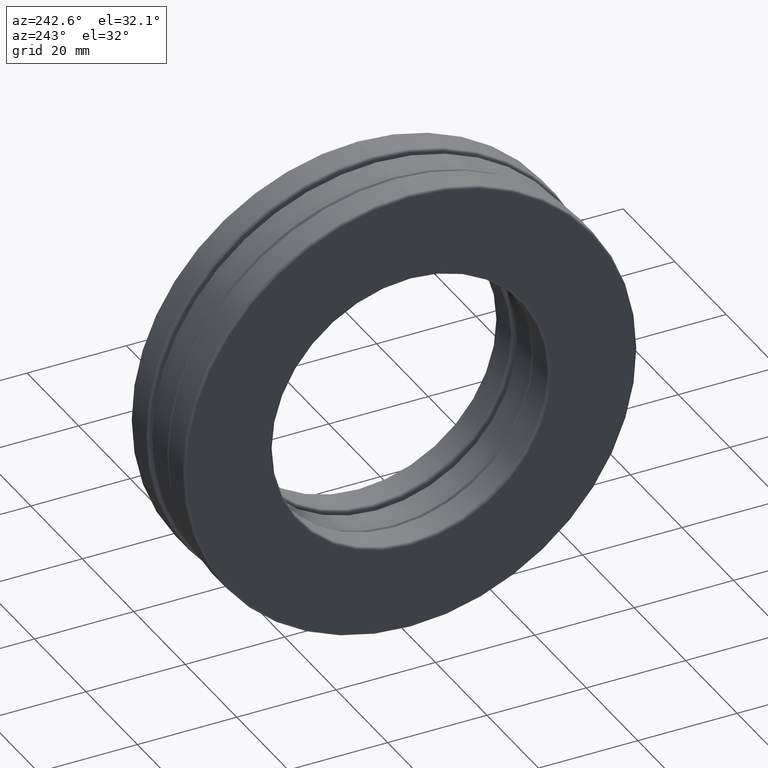
[diagram: clean part render]
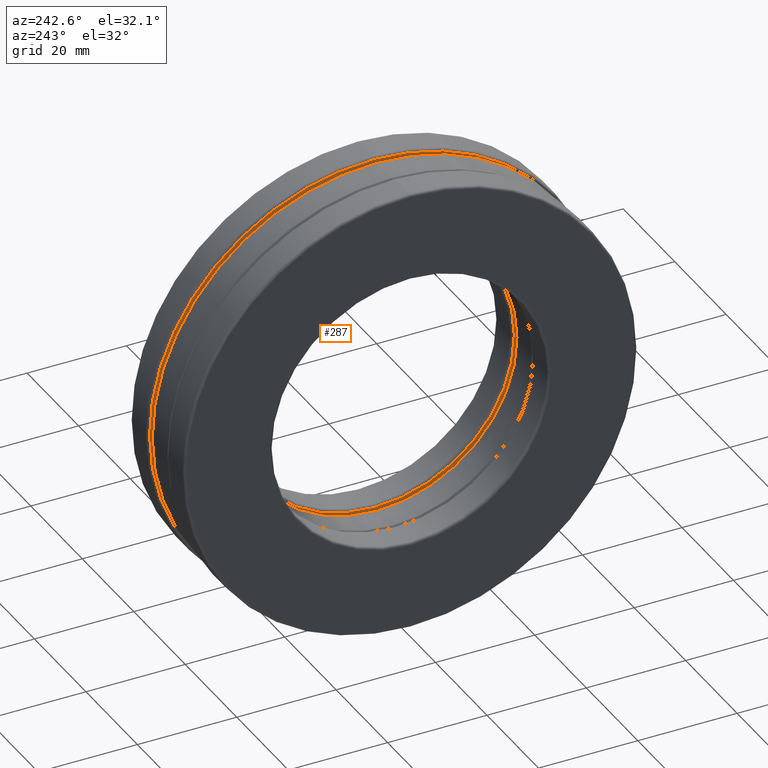
[diagram: same view with one face highlighted and labeled with its STEP entity id]
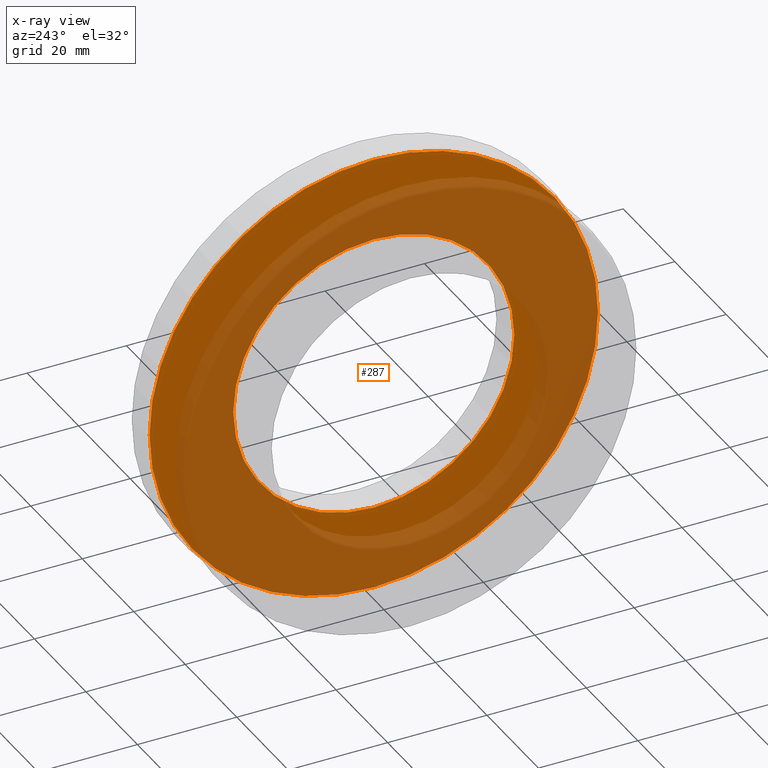
[diagram: x-ray of the same camera — body ghosted, the highlighted face saturated]
A machine part, auxiliary view. The second image highlights one B-rep face of the part: STEP entity #287.
The next image is the same camera in x-ray: the body ghosted, the highlighted face saturated — about 68% of this face is hidden behind the body in this view.
In plain terms, the highlighted planar face has unit normal (1, 0, 0).
Its self-contained STEP definition (entity closure, byte-faithful):
#48 = CARTESIAN_POINT ( 'NONE',  ( 0.1559999999999999400, 0.0000000000000000000, 0.0000000000000000000 ) ) ;
#107 = CARTESIAN_POINT ( 'NONE',  ( 0.1559999999999999400, 0.0000000000000000000, 1.113750000000000000 ) ) ;
#153 = FACE_BOUND ( 'NONE', #803, .T. ) ;
#201 = DIRECTION ( 'NONE',  ( 1.000000000000000000, 0.0000000000000000000, 0.0000000000000000000 ) ) ;
#211 = CARTESIAN_POINT ( 'NONE',  ( 0.1560000000000000000, -8.033332460162574100E-018, 0.0000000000000000000 ) ) ;
#212 = DIRECTION ( 'NONE',  ( -1.000000000000000000, -0.0000000000000000000, -0.0000000000000000000 ) ) ;
#287 = ADVANCED_FACE ( 'NONE', ( #153, #293 ), #1452, .F. ) ;
#293 = FACE_OUTER_BOUND ( 'NONE', #1377, .T. ) ;
#326 = ORIENTED_EDGE ( 'NONE', *, *, #1351, .T. ) ;
#363 = CARTESIAN_POINT ( 'NONE',  ( 0.1560000000000000000, 0.0000000000000000000, 1.776875000000000400 ) ) ;
#443 = VERTEX_POINT ( 'NONE', #107 ) ;
#486 = DIRECTION ( 'NONE',  ( 0.0000000000000000000, 0.0000000000000000000, 1.000000000000000000 ) ) ;
#553 = DIRECTION ( 'NONE',  ( 0.0000000000000000000, 0.0000000000000000000, 1.000000000000000000 ) ) ;
#555 = AXIS2_PLACEMENT_3D ( 'NONE', #48, #964, #486 ) ;
#655 = CARTESIAN_POINT ( 'NONE',  ( 0.1560000000000000000, 0.0000000000000000000, 0.0000000000000000000 ) ) ;
#715 = AXIS2_PLACEMENT_3D ( 'NONE', #655, #212, #553 ) ;
#774 = DIRECTION ( 'NONE',  ( 0.0000000000000000000, 0.0000000000000000000, -1.000000000000000000 ) ) ;
#803 = EDGE_LOOP ( 'NONE', ( #1086 ) ) ;
#833 = EDGE_CURVE ( 'NONE', #443, #443, #842, .T. ) ;
#842 = CIRCLE ( 'NONE', #555, 1.113750000000000000 ) ;
#964 = DIRECTION ( 'NONE',  ( -1.000000000000000000, -0.0000000000000000000, -0.0000000000000000000 ) ) ;
#1086 = ORIENTED_EDGE ( 'NONE', *, *, #833, .F. ) ;
#1257 = VERTEX_POINT ( 'NONE', #363 ) ;
#1351 = EDGE_CURVE ( 'NONE', #1257, #1257, #1381, .T. ) ;
#1372 = AXIS2_PLACEMENT_3D ( 'NONE', #211, #201, #774 ) ;
#1377 = EDGE_LOOP ( 'NONE', ( #326 ) ) ;
#1381 = CIRCLE ( 'NONE', #715, 1.776875000000000400 ) ;
#1452 = PLANE ( 'NONE',  #1372 ) ;